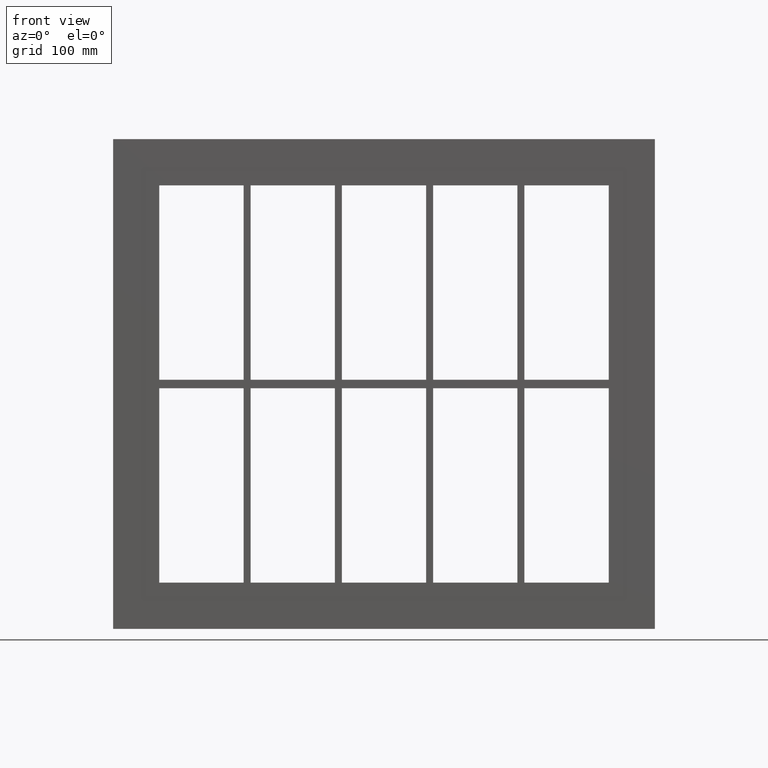
[diagram: clean part render]
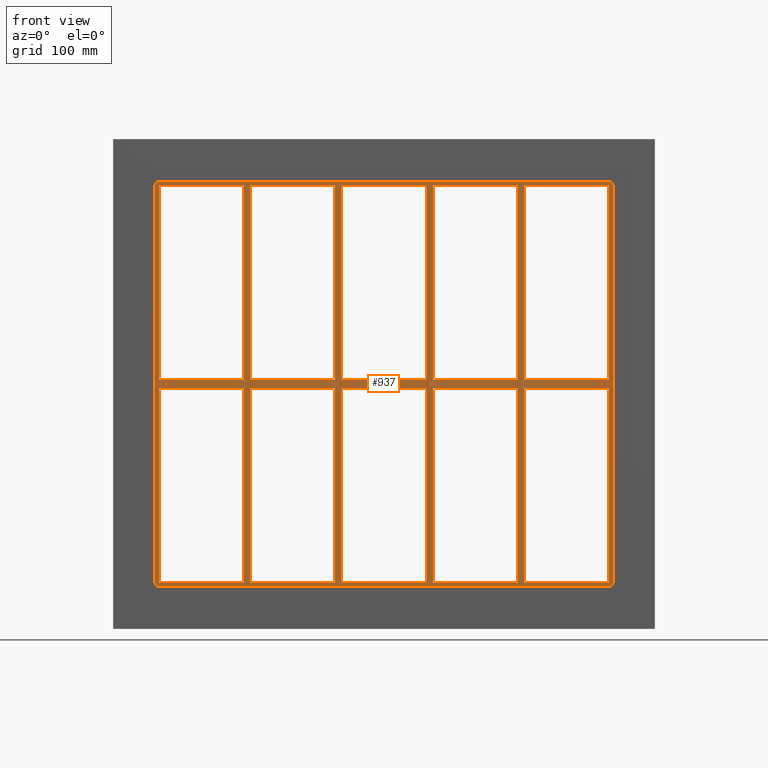
[diagram: same view with one face highlighted and labeled with its STEP entity id]
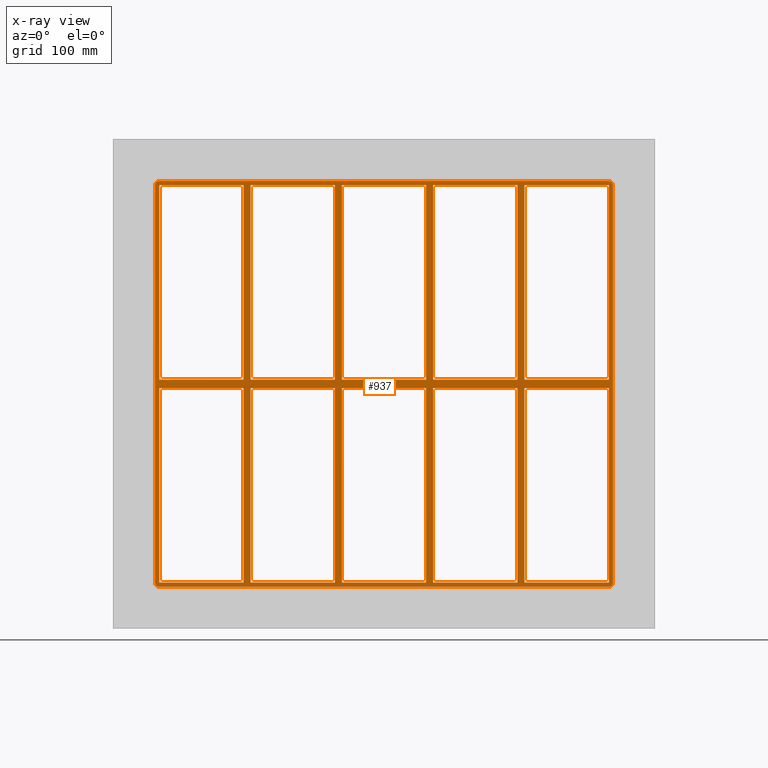
[diagram: x-ray of the same camera — body ghosted, the highlighted face saturated]
A machine part, front view. The second image highlights one B-rep face of the part: STEP entity #937.
The next image is the same camera in x-ray: the body ghosted, the highlighted face saturated — about 0% of this face is hidden behind the body in this view.
In plain terms, the highlighted planar face has unit normal (0, 1, 0).
Its self-contained STEP definition (entity closure, byte-faithful):
#73=CARTESIAN_POINT('',(190.74999999999872,-3.0,5.999999999999943));
#74=VERTEX_POINT('',#73);
#83=CARTESIAN_POINT('',(190.74999999999869,-3.0,284.00000000000006));
#84=VERTEX_POINT('',#83);
#85=CARTESIAN_POINT('',(190.74999999999872,-3.0,5.999999999999943));
#86=DIRECTION('',(0.0,0.0,1.0));
#87=VECTOR('',#86,278.00000000000011);
#88=LINE('',#85,#87);
#89=EDGE_CURVE('',#74,#84,#88,.T.);
#115=CARTESIAN_POINT('',(190.74999999999872,-3.0,-6.000000000009251));
#116=VERTEX_POINT('',#115);
#131=CARTESIAN_POINT('',(190.74999999999875,-3.0,-284.00000000000006));
#132=VERTEX_POINT('',#131);
#139=CARTESIAN_POINT('',(190.74999999999875,-3.0,-284.00000000000006));
#140=DIRECTION('',(0.0,0.0,1.0));
#141=VECTOR('',#140,277.99999999999079);
#142=LINE('',#139,#141);
#143=EDGE_CURVE('',#132,#116,#142,.T.);
#155=CARTESIAN_POINT('',(200.74999999999278,-3.0,5.999999999999943));
#156=VERTEX_POINT('',#155);
#171=CARTESIAN_POINT('',(200.74999999999278,-3.0,284.00000000000006));
#172=VERTEX_POINT('',#171);
#179=CARTESIAN_POINT('',(200.74999999999278,-3.0,284.00000000000006));
#180=DIRECTION('',(0.0,0.0,-1.0));
#181=VECTOR('',#180,278.00000000000011);
#182=LINE('',#179,#181);
#183=EDGE_CURVE('',#172,#156,#182,.T.);
#193=CARTESIAN_POINT('',(200.74999999999278,-3.0,-6.000000000009251));
#194=VERTEX_POINT('',#193);
#203=CARTESIAN_POINT('',(200.74999999999278,-3.0,-283.99999999998431));
#204=VERTEX_POINT('',#203);
#205=CARTESIAN_POINT('',(200.74999999999278,-3.0,-6.000000000009266));
#206=DIRECTION('',(0.0,0.0,-1.0));
#207=VECTOR('',#206,277.99999999997499);
#208=LINE('',#205,#207);
#209=EDGE_CURVE('',#194,#204,#208,.T.);
#233=CARTESIAN_POINT('',(60.249999999998671,-3.0,5.999999999999943));
#234=VERTEX_POINT('',#233);
#243=CARTESIAN_POINT('',(60.249999999998636,-3.0,284.00000000000006));
#244=VERTEX_POINT('',#243);
#245=CARTESIAN_POINT('',(60.249999999998671,-3.0,5.999999999999943));
#246=DIRECTION('',(0.0,0.0,1.0));
#247=VECTOR('',#246,278.00000000000011);
#248=LINE('',#245,#247);
#249=EDGE_CURVE('',#234,#244,#248,.T.);
#275=CARTESIAN_POINT('',(60.249999999998671,-3.0,-6.000000000009287));
#276=VERTEX_POINT('',#275);
#291=CARTESIAN_POINT('',(60.249999999998707,-3.0,-284.00000000000006));
#292=VERTEX_POINT('',#291);
#299=CARTESIAN_POINT('',(60.249999999998707,-3.0,-284.00000000000006));
#300=DIRECTION('',(0.0,0.0,1.0));
#301=VECTOR('',#300,277.99999999999079);
#302=LINE('',#299,#301);
#303=EDGE_CURVE('',#292,#276,#302,.T.);
#315=CARTESIAN_POINT('',(70.249999999992738,-3.0,5.999999999999943));
#316=VERTEX_POINT('',#315);
#331=CARTESIAN_POINT('',(70.249999999992738,-3.0,284.00000000000006));
#332=VERTEX_POINT('',#331);
#339=CARTESIAN_POINT('',(70.249999999992738,-3.0,284.00000000000006));
#340=DIRECTION('',(0.0,0.0,-1.0));
#341=VECTOR('',#340,278.00000000000011);
#342=LINE('',#339,#341);
#343=EDGE_CURVE('',#332,#316,#342,.T.);
#353=CARTESIAN_POINT('',(70.249999999992738,-3.0,-6.000000000009287));
#354=VERTEX_POINT('',#353);
#363=CARTESIAN_POINT('',(70.249999999992738,-3.0,-283.99999999998431));
#364=VERTEX_POINT('',#363);
#365=CARTESIAN_POINT('',(70.249999999992738,-3.0,-6.000000000009266));
#366=DIRECTION('',(0.0,0.0,-1.0));
#367=VECTOR('',#366,277.99999999997499);
#368=LINE('',#365,#367);
#369=EDGE_CURVE('',#354,#364,#368,.T.);
#393=CARTESIAN_POINT('',(-70.250000000001336,-3.0,5.999999999999943));
#394=VERTEX_POINT('',#393);
#403=CARTESIAN_POINT('',(-70.250000000001364,-3.0,284.00000000000006));
#404=VERTEX_POINT('',#403);
#405=CARTESIAN_POINT('',(-70.25000000000135,-3.0,5.999999999999943));
#406=DIRECTION('',(0.0,0.0,1.0));
#407=VECTOR('',#406,278.00000000000011);
#408=LINE('',#405,#407);
#409=EDGE_CURVE('',#394,#404,#408,.T.);
#435=CARTESIAN_POINT('',(-70.250000000001336,-3.0,-6.000000000009287));
#436=VERTEX_POINT('',#435);
#451=CARTESIAN_POINT('',(-70.250000000001307,-3.0,-284.00000000000006));
#452=VERTEX_POINT('',#451);
#459=CARTESIAN_POINT('',(-70.250000000001307,-3.0,-284.00000000000006));
#460=DIRECTION('',(0.0,0.0,1.0));
#461=VECTOR('',#460,277.99999999999079);
#462=LINE('',#459,#461);
#463=EDGE_CURVE('',#452,#436,#462,.T.);
#475=CARTESIAN_POINT('',(-60.250000000007269,-3.0,5.999999999999943));
#476=VERTEX_POINT('',#475);
#491=CARTESIAN_POINT('',(-60.250000000007269,-3.0,284.00000000000006));
#492=VERTEX_POINT('',#491);
#499=CARTESIAN_POINT('',(-60.250000000007269,-3.0,284.00000000000006));
#500=DIRECTION('',(0.0,0.0,-1.0));
#501=VECTOR('',#500,278.00000000000011);
#502=LINE('',#499,#501);
#503=EDGE_CURVE('',#492,#476,#502,.T.);
#513=CARTESIAN_POINT('',(-60.250000000007269,-3.0,-6.000000000009287));
#514=VERTEX_POINT('',#513);
#523=CARTESIAN_POINT('',(-60.250000000007269,-3.0,-283.99999999998431));
#524=VERTEX_POINT('',#523);
#525=CARTESIAN_POINT('',(-60.250000000007269,-3.0,-6.000000000009266));
#526=DIRECTION('',(0.0,0.0,-1.0));
#527=VECTOR('',#526,277.99999999997499);
#528=LINE('',#525,#527);
#529=EDGE_CURVE('',#514,#524,#528,.T.);
#562=CARTESIAN_POINT('',(-190.75000000000728,-3.0,-283.99999999998431));
#563=VERTEX_POINT('',#562);
#570=CARTESIAN_POINT('',(-70.250000000001307,-3.0,-284.00000000000006));
#571=DIRECTION('',(-1.0,0.0,0.0));
#572=VECTOR('',#571,120.50000000000597);
#573=LINE('',#570,#572);
#574=EDGE_CURVE('',#452,#563,#573,.T.);
#592=CARTESIAN_POINT('',(60.249999999998693,-3.0,-284.00000000000006));
#593=DIRECTION('',(-1.0,0.0,0.0));
#594=VECTOR('',#593,120.50000000000597);
#595=LINE('',#592,#594);
#596=EDGE_CURVE('',#292,#524,#595,.T.);
#614=CARTESIAN_POINT('',(190.74999999999875,-3.0,-284.00000000000006));
#615=DIRECTION('',(-1.0,0.0,0.0));
#616=VECTOR('',#615,120.50000000000603);
#617=LINE('',#614,#616);
#618=EDGE_CURVE('',#132,#364,#617,.T.);
#629=CARTESIAN_POINT('',(321.25000000000011,-3.0,-284.00000000000006));
#630=VERTEX_POINT('',#629);
#631=CARTESIAN_POINT('',(321.25000000000011,-3.0,-284.00000000000006));
#632=DIRECTION('',(-1.0,0.0,0.0));
#633=VECTOR('',#632,120.50000000000733);
#634=LINE('',#631,#633);
#635=EDGE_CURVE('',#630,#204,#634,.T.);
#654=CARTESIAN_POINT('',(0.0,-3.0,4.144113E-014));
#655=DIRECTION('',(0.0,1.0,0.0));
#656=DIRECTION('',(0.0,0.0,1.0));
#657=AXIS2_PLACEMENT_3D('',#654,#655,#656);
#658=PLANE('',#657);
#659=CARTESIAN_POINT('',(327.25,-3.0,-284.0));
#660=VERTEX_POINT('',#659);
#661=CARTESIAN_POINT('',(321.25,-3.0,-290.0));
#662=VERTEX_POINT('',#661);
#663=CARTESIAN_POINT('',(321.25,-3.0,-284.0));
#664=DIRECTION('',(0.0,1.0,0.0));
#665=DIRECTION('',(0.707106781186543,0.0,-0.707106781186552));
#666=AXIS2_PLACEMENT_3D('',#663,#664,#665);
#667=CIRCLE('',#666,6.000000000000001);
#668=EDGE_CURVE('',#660,#662,#667,.T.);
#669=ORIENTED_EDGE('',*,*,#668,.F.);
#670=CARTESIAN_POINT('',(327.25,-3.0,284.00000000000006));
#671=VERTEX_POINT('',#670);
#672=CARTESIAN_POINT('',(327.25,-3.0,-283.99999999999994));
#673=DIRECTION('',(0.0,0.0,1.0));
#674=VECTOR('',#673,568.0);
#675=LINE('',#672,#674);
#676=EDGE_CURVE('',#660,#671,#675,.T.);
#677=ORIENTED_EDGE('',*,*,#676,.T.);
#678=CARTESIAN_POINT('',(321.24999999999994,-3.0,290.00000000000006));
#679=VERTEX_POINT('',#678);
#680=CARTESIAN_POINT('',(321.25,-3.0,284.00000000000006));
#681=DIRECTION('',(0.0,1.0,0.0));
#682=DIRECTION('',(0.707106781186543,0.0,0.707106781186552));
#683=AXIS2_PLACEMENT_3D('',#680,#681,#682);
#684=CIRCLE('',#683,6.000000000000001);
#685=EDGE_CURVE('',#679,#671,#684,.T.);
#686=ORIENTED_EDGE('',*,*,#685,.F.);
#687=CARTESIAN_POINT('',(-321.25,-3.0,290.00000000000006));
#688=VERTEX_POINT('',#687);
#689=CARTESIAN_POINT('',(321.25,-3.0,290.00000000000006));
#690=DIRECTION('',(-1.0,0.0,0.0));
#691=VECTOR('',#690,642.5);
#692=LINE('',#689,#691);
#693=EDGE_CURVE('',#679,#688,#692,.T.);
#694=ORIENTED_EDGE('',*,*,#693,.T.);
#695=CARTESIAN_POINT('',(-327.25,-3.0,284.00000000000006));
#696=VERTEX_POINT('',#695);
#697=CARTESIAN_POINT('',(-321.25,-3.0,284.00000000000006));
#698=DIRECTION('',(0.0,1.0,0.0));
#699=DIRECTION('',(-0.707106781186543,0.0,0.707106781186552));
#700=AXIS2_PLACEMENT_3D('',#697,#698,#699);
#701=CIRCLE('',#700,6.000000000000001);
#702=EDGE_CURVE('',#696,#688,#701,.T.);
#703=ORIENTED_EDGE('',*,*,#702,.F.);
#704=CARTESIAN_POINT('',(-327.25,-3.0,-284.0));
#705=VERTEX_POINT('',#704);
#706=CARTESIAN_POINT('',(-327.25,-3.0,284.0));
#707=DIRECTION('',(0.0,0.0,-1.0));
#708=VECTOR('',#707,568.0);
#709=LINE('',#706,#708);
#710=EDGE_CURVE('',#696,#705,#709,.T.);
#711=ORIENTED_EDGE('',*,*,#710,.T.);
#712=CARTESIAN_POINT('',(-321.24999999999994,-3.0,-290.0));
#713=VERTEX_POINT('',#712);
#714=CARTESIAN_POINT('',(-321.25,-3.0,-284.0));
#715=DIRECTION('',(0.0,1.0,0.0));
#716=DIRECTION('',(-0.707106781186543,0.0,-0.707106781186552));
#717=AXIS2_PLACEMENT_3D('',#714,#715,#716);
#718=CIRCLE('',#717,6.000000000000001);
#719=EDGE_CURVE('',#713,#705,#718,.T.);
#720=ORIENTED_EDGE('',*,*,#719,.F.);
#721=CARTESIAN_POINT('',(-321.25,-3.0,-290.0));
#722=DIRECTION('',(1.0,0.0,0.0));
#723=VECTOR('',#722,642.5);
#724=LINE('',#721,#723);
#725=EDGE_CURVE('',#713,#662,#724,.T.);
#726=ORIENTED_EDGE('',*,*,#725,.T.);
#727=EDGE_LOOP('',(#669,#677,#686,#694,#703,#711,#720,#726));
#728=FACE_OUTER_BOUND('',#727,.T.);
#729=ORIENTED_EDGE('',*,*,#618,.T.);
#730=ORIENTED_EDGE('',*,*,#369,.F.);
#731=CARTESIAN_POINT('',(190.74999999999872,-3.0,-6.000000000009266));
#732=DIRECTION('',(-1.0,0.0,0.0));
#733=VECTOR('',#732,120.500000000006);
#734=LINE('',#731,#733);
#735=EDGE_CURVE('',#116,#354,#734,.T.);
#736=ORIENTED_EDGE('',*,*,#735,.F.);
#737=ORIENTED_EDGE('',*,*,#143,.F.);
#738=EDGE_LOOP('',(#729,#730,#736,#737));
#739=FACE_BOUND('',#738,.T.);
#740=CARTESIAN_POINT('',(70.249999999992724,-3.0,5.999999999999943));
#741=DIRECTION('',(1.0,0.0,0.0));
#742=VECTOR('',#741,120.50000000000603);
#743=LINE('',#740,#742);
#744=EDGE_CURVE('',#316,#74,#743,.T.);
#745=ORIENTED_EDGE('',*,*,#744,.F.);
#746=ORIENTED_EDGE('',*,*,#343,.F.);
#747=CARTESIAN_POINT('',(70.249999999992724,-3.0,284.00000000000006));
#748=DIRECTION('',(1.0,0.0,0.0));
#749=VECTOR('',#748,120.50000000000597);
#750=LINE('',#747,#749);
#751=EDGE_CURVE('',#332,#84,#750,.T.);
#752=ORIENTED_EDGE('',*,*,#751,.T.);
#753=ORIENTED_EDGE('',*,*,#89,.F.);
#754=EDGE_LOOP('',(#745,#746,#752,#753));
#755=FACE_BOUND('',#754,.T.);
#756=ORIENTED_EDGE('',*,*,#596,.T.);
#757=ORIENTED_EDGE('',*,*,#529,.F.);
#758=CARTESIAN_POINT('',(60.249999999998693,-3.0,-6.00000000000928));
#759=DIRECTION('',(-1.0,0.0,0.0));
#760=VECTOR('',#759,120.50000000000597);
#761=LINE('',#758,#760);
#762=EDGE_CURVE('',#276,#514,#761,.T.);
#763=ORIENTED_EDGE('',*,*,#762,.F.);
#764=ORIENTED_EDGE('',*,*,#303,.F.);
#765=EDGE_LOOP('',(#756,#757,#763,#764));
#766=FACE_BOUND('',#765,.T.);
#767=CARTESIAN_POINT('',(-60.250000000007276,-3.0,5.999999999999943));
#768=DIRECTION('',(1.0,0.0,0.0));
#769=VECTOR('',#768,120.50000000000591);
#770=LINE('',#767,#769);
#771=EDGE_CURVE('',#476,#234,#770,.T.);
#772=ORIENTED_EDGE('',*,*,#771,.F.);
#773=ORIENTED_EDGE('',*,*,#503,.F.);
#774=CARTESIAN_POINT('',(-60.250000000007276,-3.0,284.00000000000006));
#775=DIRECTION('',(1.0,0.0,0.0));
#776=VECTOR('',#775,120.50000000000591);
#777=LINE('',#774,#776);
#778=EDGE_CURVE('',#492,#244,#777,.T.);
#779=ORIENTED_EDGE('',*,*,#778,.T.);
#780=ORIENTED_EDGE('',*,*,#249,.F.);
#781=EDGE_LOOP('',(#772,#773,#779,#780));
#782=FACE_BOUND('',#781,.T.);
#783=ORIENTED_EDGE('',*,*,#574,.T.);
#784=CARTESIAN_POINT('',(-190.75000000000728,-3.0,-6.000000000009308));
#785=VERTEX_POINT('',#784);
#786=CARTESIAN_POINT('',(-190.75000000000728,-3.0,-6.000000000009322));
#787=DIRECTION('',(0.0,0.0,-1.0));
#788=VECTOR('',#787,277.99999999997493);
#789=LINE('',#786,#788);
#790=EDGE_CURVE('',#785,#563,#789,.T.);
#791=ORIENTED_EDGE('',*,*,#790,.F.);
#792=CARTESIAN_POINT('',(-70.250000000001364,-3.0,-6.000000000009295));
#793=DIRECTION('',(-1.0,0.0,0.0));
#794=VECTOR('',#793,120.50000000000591);
#795=LINE('',#792,#794);
#796=EDGE_CURVE('',#436,#785,#795,.T.);
#797=ORIENTED_EDGE('',*,*,#796,.F.);
#798=ORIENTED_EDGE('',*,*,#463,.F.);
#799=EDGE_LOOP('',(#783,#791,#797,#798));
#800=FACE_BOUND('',#799,.T.);
#801=CARTESIAN_POINT('',(-190.75000000000728,-3.0,5.999999999999943));
#802=VERTEX_POINT('',#801);
#803=CARTESIAN_POINT('',(-190.75000000000728,-3.0,5.999999999999943));
#804=DIRECTION('',(1.0,0.0,0.0));
#805=VECTOR('',#804,120.50000000000594);
#806=LINE('',#803,#805);
#807=EDGE_CURVE('',#802,#394,#806,.T.);
#808=ORIENTED_EDGE('',*,*,#807,.F.);
#809=CARTESIAN_POINT('',(-190.75000000000728,-3.0,284.00000000000006));
#810=VERTEX_POINT('',#809);
#811=CARTESIAN_POINT('',(-190.75000000000728,-3.0,284.00000000000006));
#812=DIRECTION('',(0.0,0.0,-1.0));
#813=VECTOR('',#812,278.00000000000011);
#814=LINE('',#811,#813);
#815=EDGE_CURVE('',#810,#802,#814,.T.);
#816=ORIENTED_EDGE('',*,*,#815,.F.);
#817=CARTESIAN_POINT('',(-190.75000000000728,-3.0,284.00000000000006));
#818=DIRECTION('',(1.0,0.0,0.0));
#819=VECTOR('',#818,120.50000000000591);
#820=LINE('',#817,#819);
#821=EDGE_CURVE('',#810,#404,#820,.T.);
#822=ORIENTED_EDGE('',*,*,#821,.T.);
#823=ORIENTED_EDGE('',*,*,#409,.F.);
#824=EDGE_LOOP('',(#808,#816,#822,#823));
#825=FACE_BOUND('',#824,.T.);
#826=ORIENTED_EDGE('',*,*,#183,.F.);
#827=CARTESIAN_POINT('',(321.25000000000011,-3.0,284.00000000000006));
#828=VERTEX_POINT('',#827);
#829=CARTESIAN_POINT('',(200.74999999999278,-3.0,284.00000000000006));
#830=DIRECTION('',(1.0,0.0,0.0));
#831=VECTOR('',#830,120.50000000000733);
#832=LINE('',#829,#831);
#833=EDGE_CURVE('',#172,#828,#832,.T.);
#834=ORIENTED_EDGE('',*,*,#833,.T.);
#835=CARTESIAN_POINT('',(321.24999999999994,-3.0,5.999999999999943));
#836=VERTEX_POINT('',#835);
#837=CARTESIAN_POINT('',(321.25000000000011,-3.0,284.00000000000006));
#838=DIRECTION('',(0.0,0.0,-1.0));
#839=VECTOR('',#838,278.00000000000011);
#840=LINE('',#837,#839);
#841=EDGE_CURVE('',#828,#836,#840,.T.);
#842=ORIENTED_EDGE('',*,*,#841,.T.);
#843=CARTESIAN_POINT('',(200.74999999999278,-3.0,5.999999999999943));
#844=DIRECTION('',(1.0,0.0,0.0));
#845=VECTOR('',#844,120.50000000000728);
#846=LINE('',#843,#845);
#847=EDGE_CURVE('',#156,#836,#846,.T.);
#848=ORIENTED_EDGE('',*,*,#847,.F.);
#849=EDGE_LOOP('',(#826,#834,#842,#848));
#850=FACE_BOUND('',#849,.T.);
#851=ORIENTED_EDGE('',*,*,#209,.F.);
#852=CARTESIAN_POINT('',(321.25,-3.0,-6.000000000009251));
#853=VERTEX_POINT('',#852);
#854=CARTESIAN_POINT('',(321.25,-3.0,-6.000000000009251));
#855=DIRECTION('',(-1.0,0.0,0.0));
#856=VECTOR('',#855,120.50000000000722);
#857=LINE('',#854,#856);
#858=EDGE_CURVE('',#853,#194,#857,.T.);
#859=ORIENTED_EDGE('',*,*,#858,.F.);
#860=CARTESIAN_POINT('',(321.25000000000011,-3.0,-6.000000000009237));
#861=DIRECTION('',(0.0,0.0,-1.0));
#862=VECTOR('',#861,277.99999999999079);
#863=LINE('',#860,#862);
#864=EDGE_CURVE('',#853,#630,#863,.T.);
#865=ORIENTED_EDGE('',*,*,#864,.T.);
#866=ORIENTED_EDGE('',*,*,#635,.T.);
#867=EDGE_LOOP('',(#851,#859,#865,#866));
#868=FACE_BOUND('',#867,.T.);
#869=CARTESIAN_POINT('',(-321.24999999999972,-3.0,5.999999999999943));
#870=VERTEX_POINT('',#869);
#871=CARTESIAN_POINT('',(-321.25,-3.0,284.00000000000006));
#872=VERTEX_POINT('',#871);
#873=CARTESIAN_POINT('',(-321.25,-3.0,5.999999999999943));
#874=DIRECTION('',(0.0,0.0,1.0));
#875=VECTOR('',#874,278.00000000000017);
#876=LINE('',#873,#875);
#877=EDGE_CURVE('',#870,#872,#876,.T.);
#878=ORIENTED_EDGE('',*,*,#877,.T.);
#879=CARTESIAN_POINT('',(-200.75000000000136,-3.0,284.00000000000006));
#880=VERTEX_POINT('',#879);
#881=CARTESIAN_POINT('',(-321.25,-3.0,284.00000000000006));
#882=DIRECTION('',(1.0,0.0,0.0));
#883=VECTOR('',#882,120.49999999999864);
#884=LINE('',#881,#883);
#885=EDGE_CURVE('',#872,#880,#884,.T.);
#886=ORIENTED_EDGE('',*,*,#885,.T.);
#887=CARTESIAN_POINT('',(-200.75000000000134,-3.0,5.999999999999943));
#888=VERTEX_POINT('',#887);
#889=CARTESIAN_POINT('',(-200.75000000000134,-3.0,5.999999999999943));
#890=DIRECTION('',(0.0,0.0,1.0));
#891=VECTOR('',#890,278.00000000000011);
#892=LINE('',#889,#891);
#893=EDGE_CURVE('',#888,#880,#892,.T.);
#894=ORIENTED_EDGE('',*,*,#893,.F.);
#895=CARTESIAN_POINT('',(-321.24999999999972,-3.0,5.999999999999943));
#896=DIRECTION('',(1.0,0.0,0.0));
#897=VECTOR('',#896,120.49999999999838);
#898=LINE('',#895,#897);
#899=EDGE_CURVE('',#870,#888,#898,.T.);
#900=ORIENTED_EDGE('',*,*,#899,.F.);
#901=EDGE_LOOP('',(#878,#886,#894,#900));
#902=FACE_BOUND('',#901,.T.);
#903=CARTESIAN_POINT('',(-200.75000000000131,-3.0,-6.000000000009309));
#904=VERTEX_POINT('',#903);
#905=CARTESIAN_POINT('',(-321.24999999999972,-3.0,-6.000000000009322));
#906=VERTEX_POINT('',#905);
#907=CARTESIAN_POINT('',(-200.75000000000136,-3.0,-6.000000000009309));
#908=DIRECTION('',(-1.0,0.0,0.0));
#909=VECTOR('',#908,120.49999999999841);
#910=LINE('',#907,#909);
#911=EDGE_CURVE('',#904,#906,#910,.T.);
#912=ORIENTED_EDGE('',*,*,#911,.F.);
#913=CARTESIAN_POINT('',(-200.75000000000131,-3.0,-284.00000000000006));
#914=VERTEX_POINT('',#913);
#915=CARTESIAN_POINT('',(-200.75000000000131,-3.0,-284.00000000000006));
#916=DIRECTION('',(0.0,0.0,1.0));
#917=VECTOR('',#916,277.99999999999073);
#918=LINE('',#915,#917);
#919=EDGE_CURVE('',#914,#904,#918,.T.);
#920=ORIENTED_EDGE('',*,*,#919,.F.);
#921=CARTESIAN_POINT('',(-321.25,-3.0,-284.00000000000006));
#922=VERTEX_POINT('',#921);
#923=CARTESIAN_POINT('',(-200.75000000000131,-3.0,-284.00000000000006));
#924=DIRECTION('',(-1.0,0.0,0.0));
#925=VECTOR('',#924,120.49999999999869);
#926=LINE('',#923,#925);
#927=EDGE_CURVE('',#914,#922,#926,.T.);
#928=ORIENTED_EDGE('',*,*,#927,.T.);
#929=CARTESIAN_POINT('',(-321.25,-3.0,-284.00000000000006));
#930=DIRECTION('',(0.0,0.0,1.0));
#931=VECTOR('',#930,277.99999999999073);
#932=LINE('',#929,#931);
#933=EDGE_CURVE('',#922,#906,#932,.T.);
#934=ORIENTED_EDGE('',*,*,#933,.T.);
#935=EDGE_LOOP('',(#912,#920,#928,#934));
#936=FACE_BOUND('',#935,.T.);
#937=ADVANCED_FACE('',(#728,#739,#755,#766,#782,#800,#825,#850,#868,#902,#936),#658,.F.);